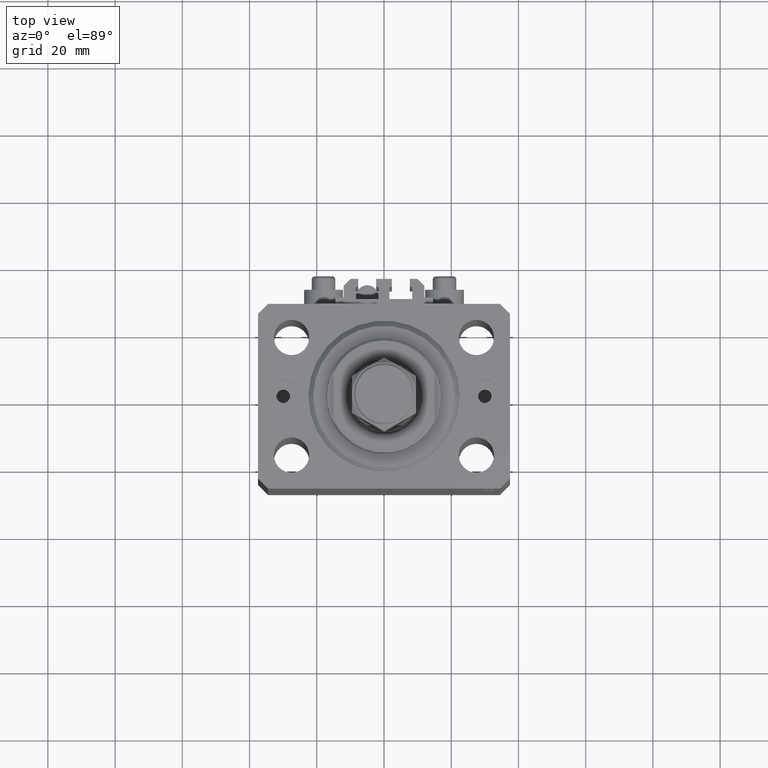
[diagram: clean part render]
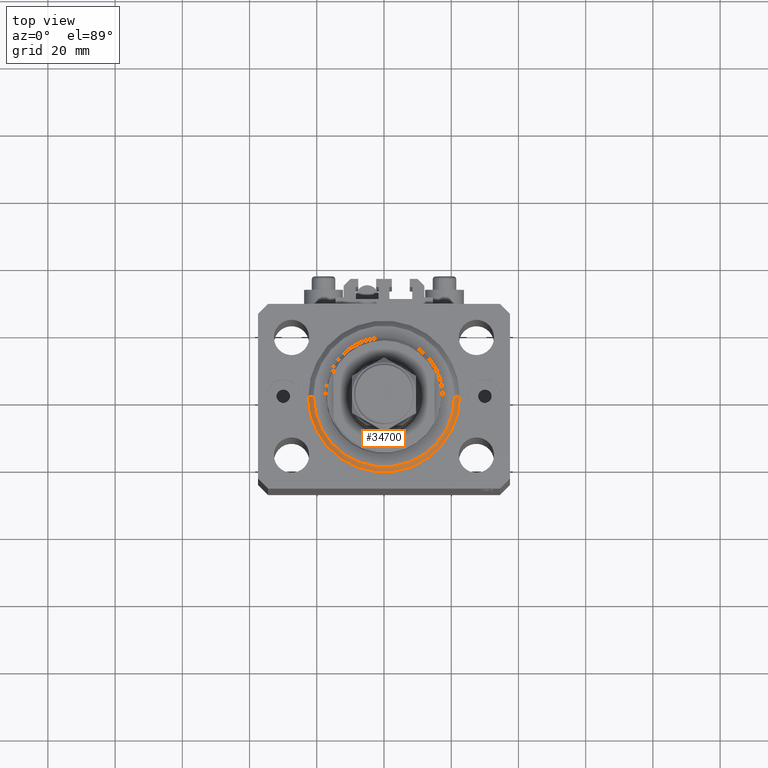
[diagram: same view with one face highlighted and labeled with its STEP entity id]
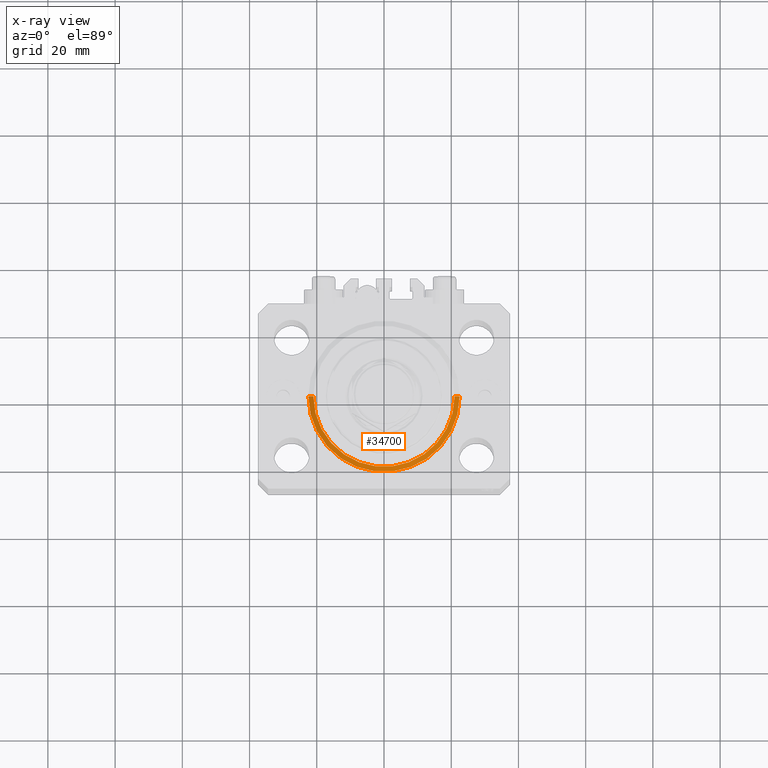
[diagram: x-ray of the same camera — body ghosted, the highlighted face saturated]
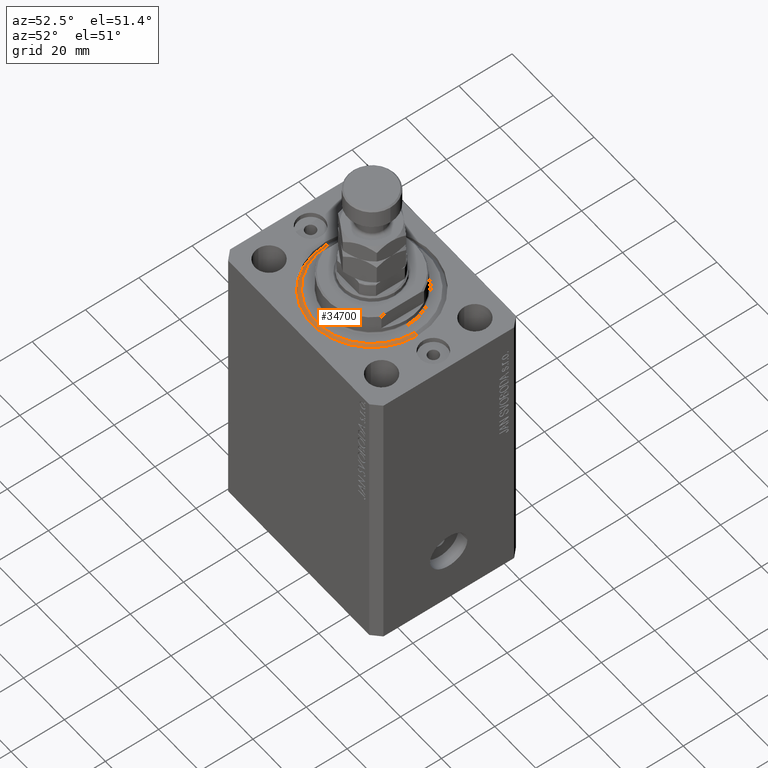
[diagram: same view with one face highlighted and labeled with its STEP entity id]
A machine part, top view. The second image highlights one B-rep face of the part: STEP entity #34700.
The next image is the same camera in x-ray: the body ghosted, the highlighted face saturated — about 0% of this face is hidden behind the body in this view.
A second angle (auxiliary view) of the same face is appended — the face is thin or edge-on in the first view.
In plain terms, the highlighted conical surface has half-angle 45 deg.
Its self-contained STEP definition (entity closure, byte-faithful):
#2616 = DIRECTION ( 'NONE',  ( 1.000000000000000000, 0.000000000000000000, 0.000000000000000000 ) ) ;
#3830 = AXIS2_PLACEMENT_3D ( 'NONE', #17078, #31646, #5307 ) ;
#5307 = DIRECTION ( 'NONE',  ( 1.000000000000000000, 0.000000000000000000, 0.000000000000000000 ) ) ;
#5977 = VERTEX_POINT ( 'NONE', #17491 ) ;
#6870 = CARTESIAN_POINT ( 'NONE',  ( 20.99999999999998934, 0.000000000000000000, 0.000000000000000000 ) ) ;
#7025 = ORIENTED_EDGE ( 'NONE', *, *, #26072, .F. ) ;
#7058 = EDGE_CURVE ( 'NONE', #34857, #5977, #14261, .T. ) ;
#8597 = VERTEX_POINT ( 'NONE', #15167 ) ;
#11969 = VECTOR ( 'NONE', #19383, 1000.000000000000114 ) ;
#12468 = AXIS2_PLACEMENT_3D ( 'NONE', #21181, #36495, #2616 ) ;
#12504 = VECTOR ( 'NONE', #36893, 1000.000000000000114 ) ;
#14191 = CARTESIAN_POINT ( 'NONE',  ( 22.50000000000000355, 2.755455298081545172E-15, 1.500000000000001332 ) ) ;
#14261 = CIRCLE ( 'NONE', #3830, 20.99999999999998934 ) ;
#15167 = CARTESIAN_POINT ( 'NONE',  ( -22.50000000000000355, 0.000000000000000000, 1.500000000000001332 ) ) ;
#17078 = CARTESIAN_POINT ( 'NONE',  ( 0.000000000000000000, 0.000000000000000000, 0.000000000000000000 ) ) ;
#17491 = CARTESIAN_POINT ( 'NONE',  ( -20.99999999999998934, 2.663606788145492628E-15, 0.000000000000000000 ) ) ;
#17753 = EDGE_CURVE ( 'NONE', #34857, #38928, #22631, .T. ) ;
#19383 = DIRECTION ( 'NONE',  ( 0.7071067811865500152, 0.000000000000000000, 0.7071067811865451302 ) ) ;
#19960 = DIRECTION ( 'NONE',  ( 1.000000000000000000, 0.000000000000000000, 0.000000000000000000 ) ) ;
#20218 = DIRECTION ( 'NONE',  ( -0.000000000000000000, -0.000000000000000000, 1.000000000000000000 ) ) ;
#21181 = CARTESIAN_POINT ( 'NONE',  ( 0.000000000000000000, 0.000000000000000000, 1.500000000000001332 ) ) ;
#21376 = ORIENTED_EDGE ( 'NONE', *, *, #17753, .T. ) ;
#22631 = LINE ( 'NONE', #26889, #11969 ) ;
#26072 = EDGE_CURVE ( 'NONE', #8597, #38928, #40858, .T. ) ;
#26428 = EDGE_LOOP ( 'NONE', ( #29467, #46942, #21376, #7025 ) ) ;
#26889 = CARTESIAN_POINT ( 'NONE',  ( 22.50000000000000355, 0.000000000000000000, 1.500000000000001332 ) ) ;
#29467 = ORIENTED_EDGE ( 'NONE', *, *, #36251, .F. ) ;
#31646 = DIRECTION ( 'NONE',  ( -0.000000000000000000, -0.000000000000000000, -1.000000000000000000 ) ) ;
#34700 = ADVANCED_FACE ( 'NONE', ( #40269 ), #45283, .T. ) ;
#34857 = VERTEX_POINT ( 'NONE', #6870 ) ;
#36251 = EDGE_CURVE ( 'NONE', #5977, #8597, #45157, .T. ) ;
#36495 = DIRECTION ( 'NONE',  ( -0.000000000000000000, -0.000000000000000000, 1.000000000000000000 ) ) ;
#36893 = DIRECTION ( 'NONE',  ( -0.7071067811865500152, 8.659560562354963673E-17, 0.7071067811865451302 ) ) ;
#37131 = CARTESIAN_POINT ( 'NONE',  ( -22.50000000000000355, 2.755455298081545172E-15, 1.500000000000001332 ) ) ;
#38928 = VERTEX_POINT ( 'NONE', #14191 ) ;
#40269 = FACE_OUTER_BOUND ( 'NONE', #26428, .T. ) ;
#40858 = CIRCLE ( 'NONE', #45669, 22.50000000000000355 ) ;
#45157 = LINE ( 'NONE', #37131, #12504 ) ;
#45283 = CONICAL_SURFACE ( 'NONE', #12468, 22.50000000000000355, 0.7853981633974517207 ) ;
#45669 = AXIS2_PLACEMENT_3D ( 'NONE', #46820, #20218, #19960 ) ;
#46820 = CARTESIAN_POINT ( 'NONE',  ( 0.000000000000000000, 0.000000000000000000, 1.500000000000001332 ) ) ;
#46942 = ORIENTED_EDGE ( 'NONE', *, *, #7058, .F. ) ;